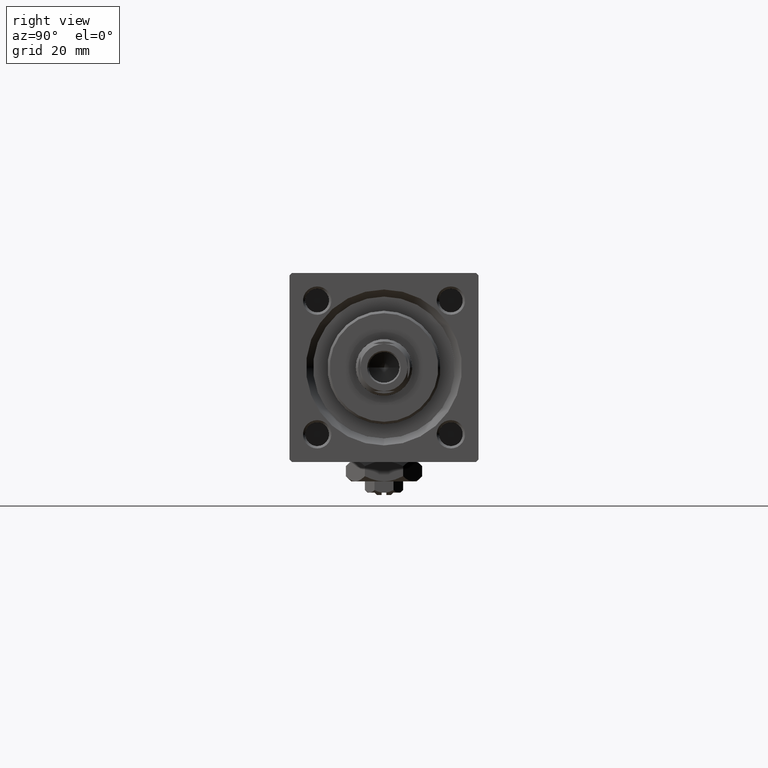
[diagram: clean part render]
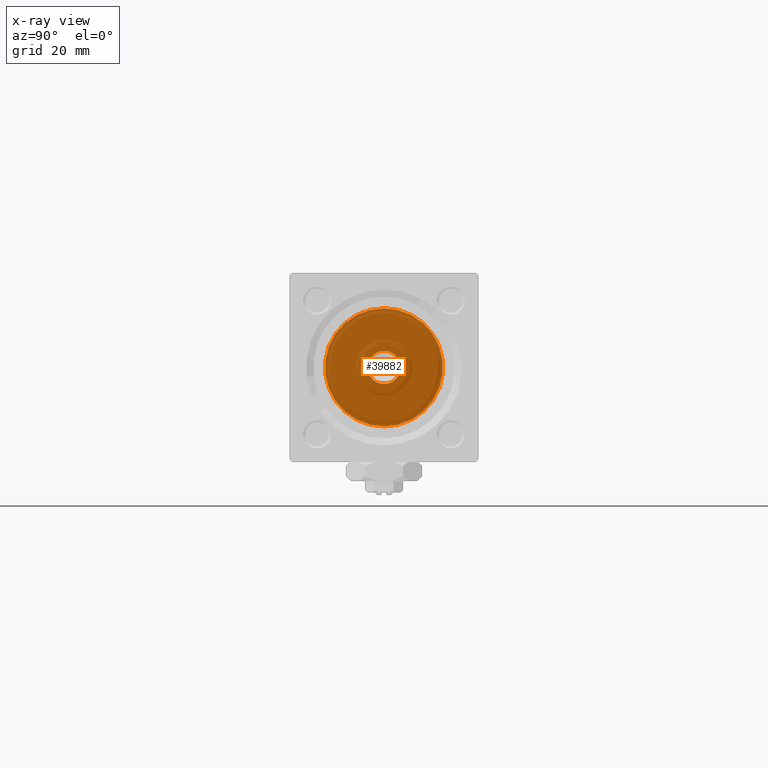
[diagram: x-ray — body ghosted, one internal face saturated and labeled with its STEP entity id]
A machine part, right view, then the same camera in x-ray: the body is ghosted and one INTERNAL B-rep face — a face not visible from any outside direction — is saturated and labeled: STEP entity #39882.
In plain terms, the highlighted planar face has unit normal (-1, 0, 0).
Its self-contained STEP definition (entity closure, byte-faithful):
#2457 = AXIS2_PLACEMENT_3D ( 'NONE', #27666, #26695, #43746 ) ;
#2469 = DIRECTION ( 'NONE',  ( -1.000000000000000000, -0.000000000000000000, -0.000000000000000000 ) ) ;
#3547 = EDGE_CURVE ( 'NONE', #15935, #29146, #16595, .T. ) ;
#3991 = DIRECTION ( 'NONE',  ( 1.000000000000000000, 0.000000000000000000, 0.000000000000000000 ) ) ;
#4119 = CIRCLE ( 'NONE', #33607, 3.500000000000000000 ) ;
#4776 = DIRECTION ( 'NONE',  ( 0.000000000000000000, 0.000000000000000000, -1.000000000000000000 ) ) ;
#4991 = CIRCLE ( 'NONE', #2457, 12.49999999999999645 ) ;
#8919 = EDGE_CURVE ( 'NONE', #29146, #15935, #4991, .T. ) ;
#10598 = AXIS2_PLACEMENT_3D ( 'NONE', #31725, #27758, #23561 ) ;
#13950 = VERTEX_POINT ( 'NONE', #38827 ) ;
#14395 = AXIS2_PLACEMENT_3D ( 'NONE', #30429, #2469, #18574 ) ;
#15641 = FACE_BOUND ( 'NONE', #31394, .T. ) ;
#15935 = VERTEX_POINT ( 'NONE', #49944 ) ;
#16152 = CARTESIAN_POINT ( 'NONE',  ( 24.00000000000000000, -2.602085213965210642E-15, 12.49999999999999645 ) ) ;
#16595 = CIRCLE ( 'NONE', #20818, 12.49999999999999645 ) ;
#17190 = EDGE_CURVE ( 'NONE', #19444, #13950, #37127, .T. ) ;
#18574 = DIRECTION ( 'NONE',  ( 0.000000000000000000, 0.000000000000000000, 1.000000000000000000 ) ) ;
#19444 = VERTEX_POINT ( 'NONE', #41741 ) ;
#20818 = AXIS2_PLACEMENT_3D ( 'NONE', #31947, #3991, #4776 ) ;
#23561 = DIRECTION ( 'NONE',  ( -0.000000000000000000, 0.000000000000000000, 1.000000000000000000 ) ) ;
#26695 = DIRECTION ( 'NONE',  ( 1.000000000000000000, 0.000000000000000000, 0.000000000000000000 ) ) ;
#27666 = CARTESIAN_POINT ( 'NONE',  ( 24.00000000000000000, -2.602085213965210642E-15, 0.000000000000000000 ) ) ;
#27758 = DIRECTION ( 'NONE',  ( -1.000000000000000000, 0.000000000000000000, -0.000000000000000000 ) ) ;
#29146 = VERTEX_POINT ( 'NONE', #16152 ) ;
#30041 = ORIENTED_EDGE ( 'NONE', *, *, #8919, .T. ) ;
#30429 = CARTESIAN_POINT ( 'NONE',  ( 23.99999999999999289, 0.000000000000000000, 0.000000000000000000 ) ) ;
#31175 = CARTESIAN_POINT ( 'NONE',  ( 23.99999999999999289, 0.000000000000000000, 0.000000000000000000 ) ) ;
#31394 = EDGE_LOOP ( 'NONE', ( #47950, #34475 ) ) ;
#31725 = CARTESIAN_POINT ( 'NONE',  ( 24.00000000000000000, 0.000000000000000000, 0.000000000000000000 ) ) ;
#31817 = EDGE_LOOP ( 'NONE', ( #30041, #44088 ) ) ;
#31947 = CARTESIAN_POINT ( 'NONE',  ( 24.00000000000000000, -2.602085213965210642E-15, 0.000000000000000000 ) ) ;
#33607 = AXIS2_PLACEMENT_3D ( 'NONE', #31175, #39858, #43293 ) ;
#34475 = ORIENTED_EDGE ( 'NONE', *, *, #50826, .T. ) ;
#37127 = CIRCLE ( 'NONE', #14395, 3.500000000000000000 ) ;
#38827 = CARTESIAN_POINT ( 'NONE',  ( 23.99999999999999289, 4.286263797015736595E-16, -3.500000000000000000 ) ) ;
#39858 = DIRECTION ( 'NONE',  ( -1.000000000000000000, -0.000000000000000000, -0.000000000000000000 ) ) ;
#39882 = ADVANCED_FACE ( 'NONE', ( #15641, #51998 ), #47541, .F. ) ;
#41741 = CARTESIAN_POINT ( 'NONE',  ( 23.99999999999999289, 0.000000000000000000, 3.500000000000000000 ) ) ;
#43293 = DIRECTION ( 'NONE',  ( 0.000000000000000000, 0.000000000000000000, 1.000000000000000000 ) ) ;
#43746 = DIRECTION ( 'NONE',  ( 0.000000000000000000, 0.000000000000000000, -1.000000000000000000 ) ) ;
#44088 = ORIENTED_EDGE ( 'NONE', *, *, #3547, .T. ) ;
#47541 = PLANE ( 'NONE',  #10598 ) ;
#47950 = ORIENTED_EDGE ( 'NONE', *, *, #17190, .T. ) ;
#49944 = CARTESIAN_POINT ( 'NONE',  ( 24.00000000000000000, -1.071276715031019515E-15, -12.49999999999999645 ) ) ;
#50826 = EDGE_CURVE ( 'NONE', #13950, #19444, #4119, .T. ) ;
#51998 = FACE_OUTER_BOUND ( 'NONE', #31817, .T. ) ;